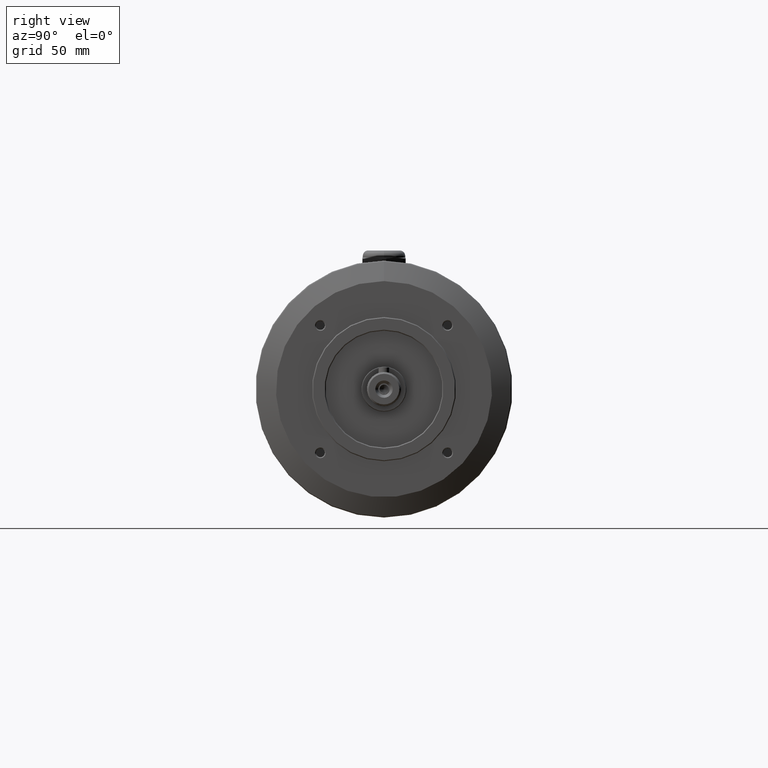
[diagram: clean part render]
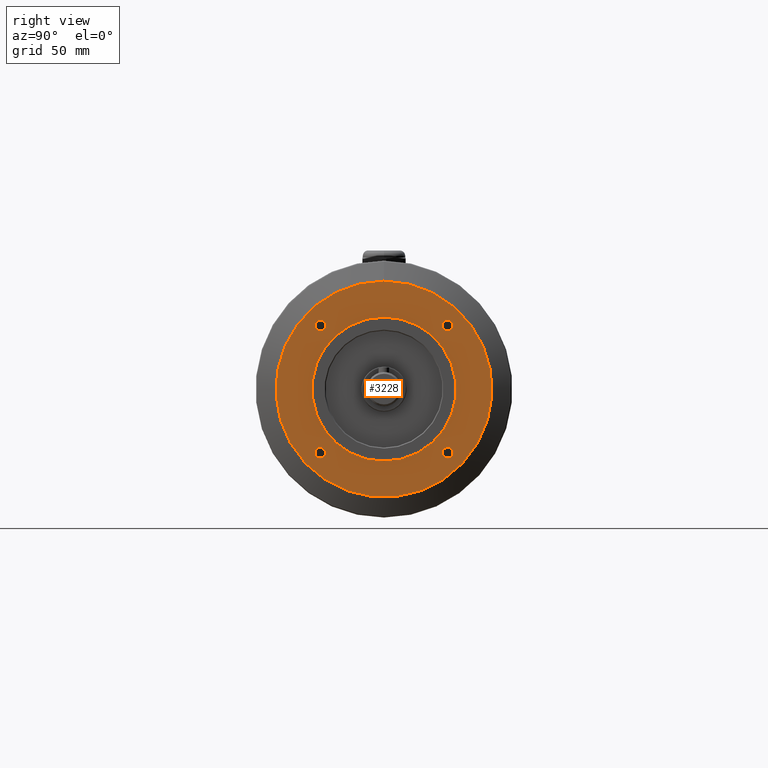
[diagram: same view with one face highlighted and labeled with its STEP entity id]
A machine part, right view. The second image highlights one B-rep face of the part: STEP entity #3228.
In plain terms, the highlighted planar face has unit normal (1, 0, 0).
Its self-contained STEP definition (entity closure, byte-faithful):
#76=PLANE('',#3434);
#500=ORIENTED_EDGE('',*,*,#1041,.T.);
#501=ORIENTED_EDGE('',*,*,#1042,.T.);
#502=ORIENTED_EDGE('',*,*,#1043,.T.);
#503=ORIENTED_EDGE('',*,*,#1044,.T.);
#504=ORIENTED_EDGE('',*,*,#1045,.T.);
#505=ORIENTED_EDGE('',*,*,#1040,.F.);
#1040=EDGE_CURVE('',#1312,#1312,#1490,.T.);
#1041=EDGE_CURVE('',#1313,#1313,#1491,.T.);
#1042=EDGE_CURVE('',#1314,#1314,#1492,.T.);
#1043=EDGE_CURVE('',#1315,#1315,#1493,.T.);
#1044=EDGE_CURVE('',#1316,#1316,#1494,.T.);
#1045=EDGE_CURVE('',#1317,#1317,#1495,.T.);
#1312=VERTEX_POINT('',#4523);
#1313=VERTEX_POINT('',#4526);
#1314=VERTEX_POINT('',#4528);
#1315=VERTEX_POINT('',#4530);
#1316=VERTEX_POINT('',#4532);
#1317=VERTEX_POINT('',#4534);
#1490=CIRCLE('',#3433,60.);
#1491=CIRCLE('',#3435,2.9585);
#1492=CIRCLE('',#3436,2.9585);
#1493=CIRCLE('',#3437,2.9585);
#1494=CIRCLE('',#3438,2.9585);
#1495=CIRCLE('',#3439,40.);
#1606=EDGE_LOOP('',(#500));
#1607=EDGE_LOOP('',(#501));
#1608=EDGE_LOOP('',(#502));
#1609=EDGE_LOOP('',(#503));
#1610=EDGE_LOOP('',(#504));
#1611=EDGE_LOOP('',(#505));
#1849=FACE_BOUND('',#1606,.T.);
#1850=FACE_BOUND('',#1607,.T.);
#1851=FACE_BOUND('',#1608,.T.);
#1852=FACE_BOUND('',#1609,.T.);
#1853=FACE_BOUND('',#1610,.T.);
#1854=FACE_BOUND('',#1611,.T.);
#3228=ADVANCED_FACE('',(#1849,#1850,#1851,#1852,#1853,#1854),#76,.T.);
#3433=AXIS2_PLACEMENT_3D('',#4522,#3810,#3811);
#3434=AXIS2_PLACEMENT_3D('',#4524,#3812,#3813);
#3435=AXIS2_PLACEMENT_3D('',#4525,#3814,#3815);
#3436=AXIS2_PLACEMENT_3D('',#4527,#3816,#3817);
#3437=AXIS2_PLACEMENT_3D('',#4529,#3818,#3819);
#3438=AXIS2_PLACEMENT_3D('',#4531,#3820,#3821);
#3439=AXIS2_PLACEMENT_3D('',#4533,#3822,#3823);
#3810=DIRECTION('',(-1.,0.,0.));
#3811=DIRECTION('',(0.,0.,1.));
#3812=DIRECTION('',(1.,0.,0.));
#3813=DIRECTION('',(0.,0.,-1.));
#3814=DIRECTION('',(-1.,0.,0.));
#3815=DIRECTION('',(0.,1.,0.));
#3816=DIRECTION('',(-1.,0.,0.));
#3817=DIRECTION('',(0.,1.,0.));
#3818=DIRECTION('',(-1.,0.,0.));
#3819=DIRECTION('',(0.,1.,0.));
#3820=DIRECTION('',(-1.,0.,0.));
#3821=DIRECTION('',(0.,1.,0.));
#3822=DIRECTION('',(-1.,0.,0.));
#3823=DIRECTION('',(0.,0.,1.));
#4522=CARTESIAN_POINT('',(0.,0.,0.));
#4523=CARTESIAN_POINT('',(0.,0.,60.));
#4524=CARTESIAN_POINT('',(-2.98155597433514E-15,0.,60.));
#4525=CARTESIAN_POINT('',(-2.08166817117217E-14,-35.3553390593274,-35.3553390593274));
#4526=CARTESIAN_POINT('',(-2.08166817117217E-14,-32.3968390593274,-35.3553390593274));
#4527=CARTESIAN_POINT('',(-2.08166817117217E-14,35.3553390593274,-35.3553390593274));
#4528=CARTESIAN_POINT('',(-2.08166817117217E-14,38.3138390593274,-35.3553390593274));
#4529=CARTESIAN_POINT('',(-2.08166817117217E-14,35.3553390593274,35.3553390593274));
#4530=CARTESIAN_POINT('',(-2.08166817117217E-14,38.3138390593274,35.3553390593274));
#4531=CARTESIAN_POINT('',(-2.08166817117217E-14,-35.3553390593274,35.3553390593274));
#4532=CARTESIAN_POINT('',(-2.08166817117217E-14,-32.3968390593274,35.3553390593274));
#4533=CARTESIAN_POINT('',(0.,0.,0.));
#4534=CARTESIAN_POINT('',(0.,0.,40.));